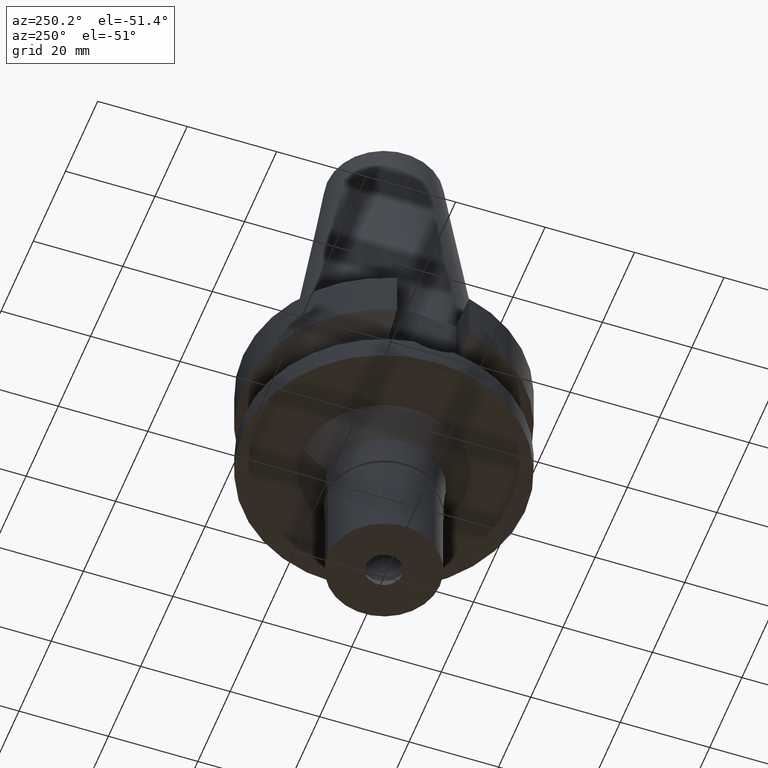
[diagram: clean part render]
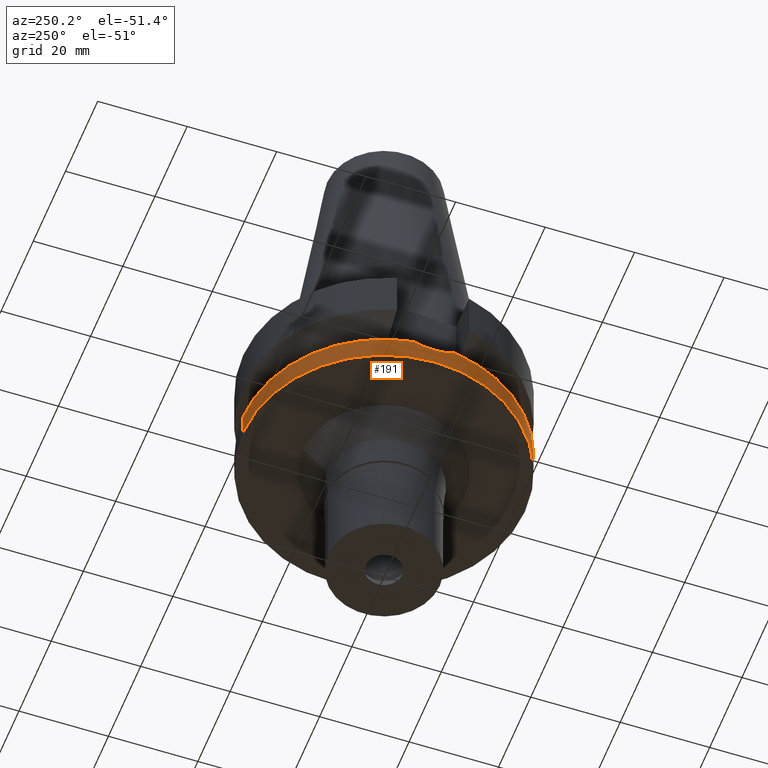
[diagram: same view with one face highlighted and labeled with its STEP entity id]
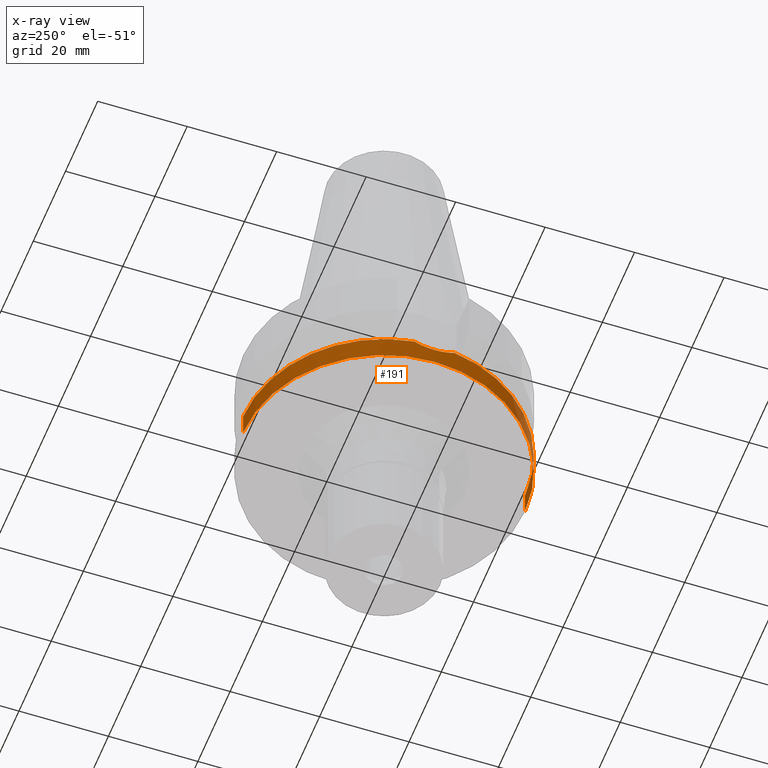
[diagram: x-ray of the same camera — body ghosted, the highlighted face saturated]
A machine part, auxiliary view. The second image highlights one B-rep face of the part: STEP entity #191.
The next image is the same camera in x-ray: the body ghosted, the highlighted face saturated — about 0% of this face is hidden behind the body in this view.
In plain terms, the highlighted cylindrical surface (partial cylindrical patch) has radius 31.5 mm, axis along (0, 0, -1).
Its self-contained STEP definition (entity closure, byte-faithful):
#135 = CIRCLE ( 'NONE', #2023, 31.50000000000000000 ) ;
#185 = CARTESIAN_POINT ( 'NONE',  ( -31.49988075799867815, -0.3932938145261449803, -22.99952906081510307 ) ) ;
#187 = VERTEX_POINT ( 'NONE', #972 ) ;
#191 = ADVANCED_FACE ( 'NONE', ( #255 ), #1918, .T. ) ;
#203 = ORIENTED_EDGE ( 'NONE', *, *, #2934, .T. ) ;
#212 = CARTESIAN_POINT ( 'NONE',  ( -31.46164955142647557, -1.563742733642382809, -22.84919402122045895 ) ) ;
#241 = CARTESIAN_POINT ( 'NONE',  ( -31.47150441655144348, 1.550750680616637123, -22.89093377968178800 ) ) ;
#243 = CARTESIAN_POINT ( 'NONE',  ( 0.0000000000000000000, -31.50000000000000000, -21.63449434733000132 ) ) ;
#255 = FACE_OUTER_BOUND ( 'NONE', #498, .T. ) ;
#431 = CARTESIAN_POINT ( 'NONE',  ( -31.28475554409169845, -3.750420082871347649, -22.12778373750485272 ) ) ;
#472 = CARTESIAN_POINT ( 'NONE',  ( -31.41451779209810624, -2.319272271067501112, -22.65867282528821747 ) ) ;
#498 = EDGE_LOOP ( 'NONE', ( #951, #1683, #203, #1506, #2236, #2920 ) ) ;
#507 = DIRECTION ( 'NONE',  ( 0.0000000000000000000, 0.0000000000000000000, -1.000000000000000000 ) ) ;
#624 = CARTESIAN_POINT ( 'NONE',  ( 0.0000000000000000000, 31.50000000000000000, -21.63449434733000132 ) ) ;
#661 = B_SPLINE_CURVE_WITH_KNOTS ( 'NONE', 3,
 ( #1647, #1901, #2363, #724, #3044, #676, #2812, #2133, #695, #2587, #665, #241, #1180, #185, #1873, #960, #212, #2842, #907, #1166, #1607, #2091, #472, #2546, #1153, #431, #1373 ),
 .UNSPECIFIED., .F., .F.,
 ( 4, 2, 2, 1, 1, 2, 2, 2, 2, 2, 1, 1, 1, 2, 2, 4 ),
 ( 0.0000000000000000000, 0.1250000000000022760, 0.1875000000000034139, 0.2187500000000039968, 0.2343750000000041911, 0.2421875000000042744, 0.2500000000000043299, 0.5000000000000026645, 0.6250000000000016653, 0.6875000000000012212, 0.7187500000000008882, 0.7343750000000005551, 0.7421875000000006661, 0.7460937500000004441, 0.7500000000000003331, 1.000000000000000000 ),
 .UNSPECIFIED. ) ;
#665 = CARTESIAN_POINT ( 'NONE',  ( -31.41200430603226934, 2.353176799722468182, -22.64842219027531556 ) ) ;
#674 = VECTOR ( 'NONE', #2514, 1000.000000000000000 ) ;
#676 = CARTESIAN_POINT ( 'NONE',  ( -31.37894136408601753, 2.758863631978540010, -22.51306821925603785 ) ) ;
#681 = CIRCLE ( 'NONE', #1868, 31.50000000000000000 ) ;
#695 = CARTESIAN_POINT ( 'NONE',  ( -31.40736225802088910, 2.414206324123219893, -22.62949227793460594 ) ) ;
#724 = CARTESIAN_POINT ( 'NONE',  ( -31.33707847181809569, 3.201445231375825706, -22.33871180483827246 ) ) ;
#736 = AXIS2_PLACEMENT_3D ( 'NONE', #2622, #507, #1444 ) ;
#880 = EDGE_CURVE ( 'NONE', #1043, #187, #135, .T. ) ;
#907 = CARTESIAN_POINT ( 'NONE',  ( -31.43649054899053752, -2.003082981862133405, -22.74794518897238049 ) ) ;
#951 = ORIENTED_EDGE ( 'NONE', *, *, #2368, .T. ) ;
#960 = CARTESIAN_POINT ( 'NONE',  ( -31.47072699418135144, -1.368170334996397175, -22.88533600626551134 ) ) ;
#972 = CARTESIAN_POINT ( 'NONE',  ( -31.17899877608999759, -4.485536235554000051, -21.63449434733000132 ) ) ;
#991 = DIRECTION ( 'NONE',  ( 0.0000000000000000000, 0.0000000000000000000, -1.000000000000000000 ) ) ;
#1002 = CARTESIAN_POINT ( 'NONE',  ( 0.0000000000000000000, 2.098554755019000113E-14, -27.00000000000000000 ) ) ;
#1043 = VERTEX_POINT ( 'NONE', #1524 ) ;
#1049 = EDGE_CURVE ( 'NONE', #2001, #2713, #2531, .T. ) ;
#1153 = CARTESIAN_POINT ( 'NONE',  ( -31.36267722272027214, -3.014176567385215666, -22.44730567392451448 ) ) ;
#1166 = CARTESIAN_POINT ( 'NONE',  ( -31.42499671940193195, -2.173479871771200944, -22.70131995672792868 ) ) ;
#1180 = CARTESIAN_POINT ( 'NONE',  ( -31.50023391467116696, 0.7573065430496271899, -23.00092412718317902 ) ) ;
#1373 = CARTESIAN_POINT ( 'NONE',  ( -31.17899877608999759, -4.485536235554000051, -21.63449434733000132 ) ) ;
#1377 = VERTEX_POINT ( 'NONE', #2069 ) ;
#1444 = DIRECTION ( 'NONE',  ( -0.9898094849552905306, 0.1423979757318985240, 0.0000000000000000000 ) ) ;
#1506 = ORIENTED_EDGE ( 'NONE', *, *, #2161, .F. ) ;
#1524 = CARTESIAN_POINT ( 'NONE',  ( 0.0000000000000000000, -31.50000000000000000, -21.63449434733000132 ) ) ;
#1607 = CARTESIAN_POINT ( 'NONE',  ( -31.41895388234278030, -2.258557297392583152, -22.67674196858698821 ) ) ;
#1647 = CARTESIAN_POINT ( 'NONE',  ( -31.17899877608999759, 4.485536235554000051, -21.63449434733000132 ) ) ;
#1683 = ORIENTED_EDGE ( 'NONE', *, *, #1049, .T. ) ;
#1725 = DIRECTION ( 'NONE',  ( 0.0000000000000000000, 0.0000000000000000000, -1.000000000000000000 ) ) ;
#1741 = DIRECTION ( 'NONE',  ( 0.0000000000000000000, -1.000000000000000000, 0.0000000000000000000 ) ) ;
#1868 = AXIS2_PLACEMENT_3D ( 'NONE', #1002, #1948, #2984 ) ;
#1873 = CARTESIAN_POINT ( 'NONE',  ( -31.49254817246029958, -0.7824343147981561719, -22.97160126998458907 ) ) ;
#1879 = CARTESIAN_POINT ( 'NONE',  ( -31.17899877608999759, 4.485536235554000051, -21.63449434733000132 ) ) ;
#1901 = CARTESIAN_POINT ( 'NONE',  ( -31.23221634381092215, 4.115620490451156854, -21.88272112299423000 ) ) ;
#1918 = CYLINDRICAL_SURFACE ( 'NONE', #3045, 31.50000000000000000 ) ;
#1948 = DIRECTION ( 'NONE',  ( 0.0000000000000000000, 0.0000000000000000000, 1.000000000000000000 ) ) ;
#1960 = CARTESIAN_POINT ( 'NONE',  ( 0.0000000000000000000, 0.0000000000000000000, -21.63449434733000132 ) ) ;
#1979 = VECTOR ( 'NONE', #2634, 1000.000000000000000 ) ;
#1981 = VERTEX_POINT ( 'NONE', #1879 ) ;
#2001 = VERTEX_POINT ( 'NONE', #3048 ) ;
#2023 = AXIS2_PLACEMENT_3D ( 'NONE', #1960, #1725, #1741 ) ;
#2069 = CARTESIAN_POINT ( 'NONE',  ( 0.0000000000000000000, -31.50000000000000000, -27.00000000000000000 ) ) ;
#2076 = CIRCLE ( 'NONE', #736, 31.50000000000001421 ) ;
#2091 = CARTESIAN_POINT ( 'NONE',  ( -31.41630068311784285, -2.294990303377874685, -22.66593676115099854 ) ) ;
#2104 = CARTESIAN_POINT ( 'NONE',  ( 0.0000000000000000000, 2.098554755019000113E-14, 71.36000000000001364 ) ) ;
#2133 = CARTESIAN_POINT ( 'NONE',  ( -31.40242035841600554, 2.478036592959342421, -22.60933024857141405 ) ) ;
#2161 = EDGE_CURVE ( 'NONE', #1043, #1377, #2612, .T. ) ;
#2236 = ORIENTED_EDGE ( 'NONE', *, *, #880, .T. ) ;
#2342 = CARTESIAN_POINT ( 'NONE',  ( 0.0000000000000000000, 31.50000000000000000, -27.00000000000000000 ) ) ;
#2363 = CARTESIAN_POINT ( 'NONE',  ( -31.27838846370805470, 3.744638242329131561, -22.08718706858014968 ) ) ;
#2368 = EDGE_CURVE ( 'NONE', #1981, #2001, #2076, .T. ) ;
#2514 = DIRECTION ( 'NONE',  ( 0.0000000000000000000, 1.099151708819000049E-13, -1.000000000000000000 ) ) ;
#2531 = LINE ( 'NONE', #624, #674 ) ;
#2546 = CARTESIAN_POINT ( 'NONE',  ( -31.41354641493285982, -2.332384000908445554, -22.65471317283218156 ) ) ;
#2587 = CARTESIAN_POINT ( 'NONE',  ( -31.41060181519636529, 2.371771208734530845, -22.64270402106513558 ) ) ;
#2612 = LINE ( 'NONE', #243, #1979 ) ;
#2622 = CARTESIAN_POINT ( 'NONE',  ( 0.0000000000000000000, 0.0000000000000000000, -21.63449434733000132 ) ) ;
#2634 = DIRECTION ( 'NONE',  ( 0.0000000000000000000, -1.105773104655000034E-13, -1.000000000000000000 ) ) ;
#2713 = VERTEX_POINT ( 'NONE', #2342 ) ;
#2725 = EDGE_CURVE ( 'NONE', #1981, #187, #661, .T. ) ;
#2812 = CARTESIAN_POINT ( 'NONE',  ( -31.39031131244612993, 2.628187298584838238, -22.55983422582649567 ) ) ;
#2842 = CARTESIAN_POINT ( 'NONE',  ( -31.44532781230132557, -1.856703196145706114, -22.78359225527461263 ) ) ;
#2861 = DIRECTION ( 'NONE',  ( 0.0000000000000000000, -1.000000000000000000, 0.0000000000000000000 ) ) ;
#2920 = ORIENTED_EDGE ( 'NONE', *, *, #2725, .F. ) ;
#2934 = EDGE_CURVE ( 'NONE', #2713, #1377, #681, .T. ) ;
#2984 = DIRECTION ( 'NONE',  ( 0.0000000000000000000, 1.000000000000000000, 0.0000000000000000000 ) ) ;
#3044 = CARTESIAN_POINT ( 'NONE',  ( -31.35488044589882506, 3.022543741488756375, -22.41338040345560501 ) ) ;
#3045 = AXIS2_PLACEMENT_3D ( 'NONE', #2104, #991, #2861 ) ;
#3048 = CARTESIAN_POINT ( 'NONE',  ( 0.0000000000000000000, 31.50000000000000000, -21.63449434733000132 ) ) ;